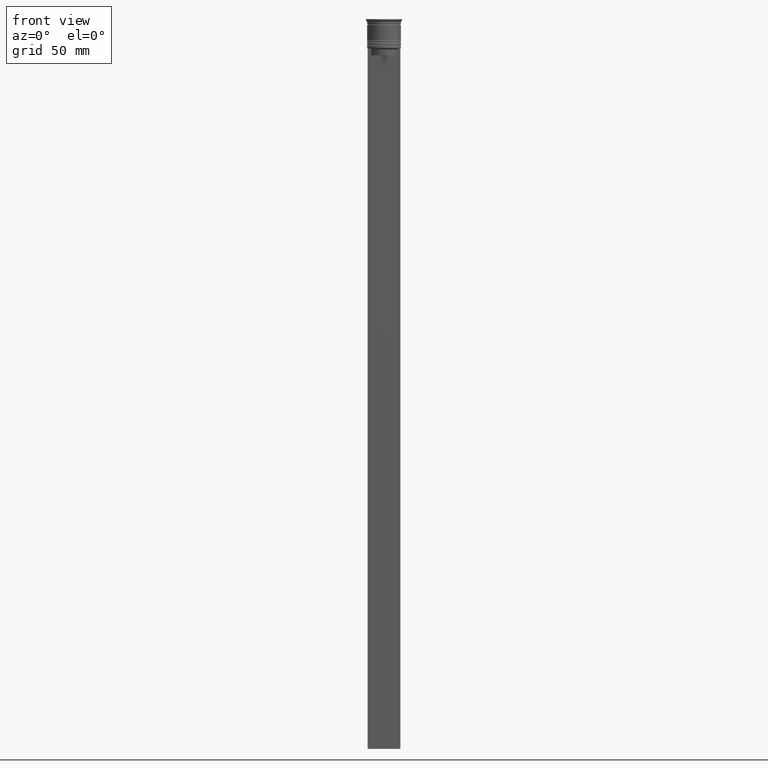
[diagram: clean part render]
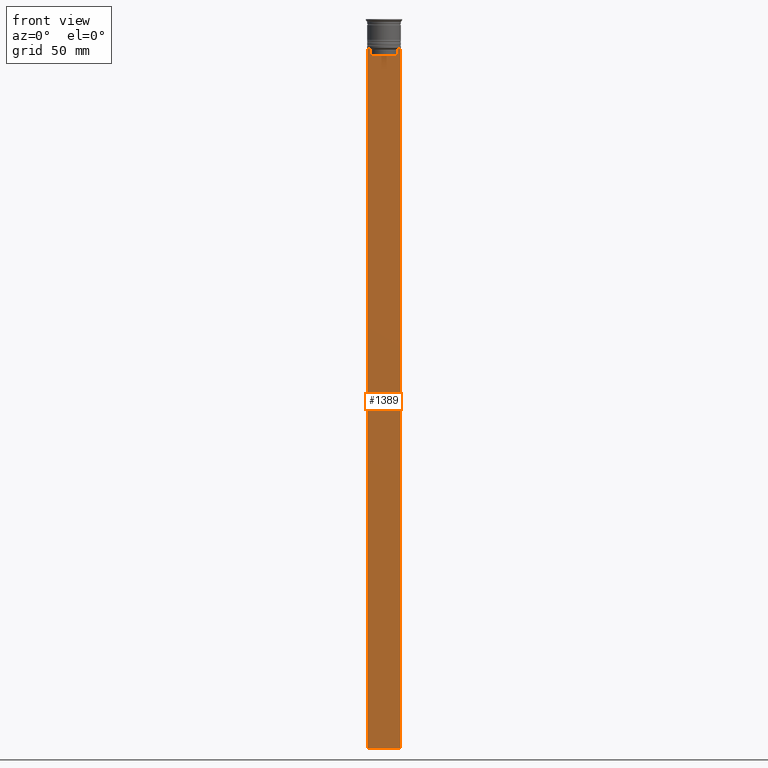
[diagram: same view with one face highlighted and labeled with its STEP entity id]
A machine part, front view. The second image highlights one B-rep face of the part: STEP entity #1389.
In plain terms, the highlighted planar face has unit normal (0, -1, -0).
Its self-contained STEP definition (entity closure, byte-faithful):
#25 = CARTESIAN_POINT ( 'NONE',  ( 7.000000000000012434, -0.5000000000000022204, 1.535668847618198329 ) ) ;
#29 = EDGE_CURVE ( 'NONE', #1887, #1810, #2250, .T. ) ;
#39 = AXIS2_PLACEMENT_3D ( 'NONE', #994, #1574, #1755 ) ;
#138 = PLANE ( 'NONE',  #39 ) ;
#171 = CARTESIAN_POINT ( 'NONE',  ( -6.999999999999987566, -0.5000000000000022204, 1.535668847618198329 ) ) ;
#206 = EDGE_CURVE ( 'NONE', #1887, #1143, #1630, .T. ) ;
#234 = CARTESIAN_POINT ( 'NONE',  ( 7.000000000000012434, -0.5000000000000022204, -12.50000000000000000 ) ) ;
#266 = VECTOR ( 'NONE', #540, 1000.000000000000000 ) ;
#338 = CARTESIAN_POINT ( 'NONE',  ( -6.999999999999987566, -0.5000000000000022204, -312.5000000000000000 ) ) ;
#404 = CARTESIAN_POINT ( 'NONE',  ( 6.129641098791995368, -0.5000000000000022204, -12.50000000000000000 ) ) ;
#498 = CARTESIAN_POINT ( 'NONE',  ( 5.795128760752288777, -0.5000000000000022204, -12.83336023406855375 ) ) ;
#514 = LINE ( 'NONE', #1078, #1847 ) ;
#532 = CARTESIAN_POINT ( 'NONE',  ( -6.999999999999987566, -0.5000000000000022204, -12.50000000000000000 ) ) ;
#535 = CARTESIAN_POINT ( 'NONE',  ( -5.627832620112292794, -0.5000000000000022204, -13.00000000000000000 ) ) ;
#536 = EDGE_CURVE ( 'NONE', #1488, #1143, #514, .T. ) ;
#540 = DIRECTION ( 'NONE',  ( 0.000000000000000000, 0.000000000000000000, -1.000000000000000000 ) ) ;
#559 = VECTOR ( 'NONE', #1809, 1000.000000000000000 ) ;
#664 = EDGE_CURVE ( 'NONE', #1923, #2178, #669, .T. ) ;
#669 = LINE ( 'NONE', #2139, #559 ) ;
#690 = DIRECTION ( 'NONE',  ( 0.000000000000000000, 0.000000000000000000, -1.000000000000000000 ) ) ;
#707 = ORIENTED_EDGE ( 'NONE', *, *, #206, .T. ) ;
#708 = CARTESIAN_POINT ( 'NONE',  ( -6.129641098791995368, -0.5000000000000022204, -12.50000000000000000 ) ) ;
#730 = VERTEX_POINT ( 'NONE', #2034 ) ;
#736 = VERTEX_POINT ( 'NONE', #234 ) ;
#771 = ORIENTED_EDGE ( 'NONE', *, *, #1349, .F. ) ;
#831 = ORIENTED_EDGE ( 'NONE', *, *, #1023, .F. ) ;
#841 = CARTESIAN_POINT ( 'NONE',  ( 5.627832620112292794, -0.5000000000000022204, -13.00000000000000000 ) ) ;
#861 = VECTOR ( 'NONE', #690, 1000.000000000000000 ) ;
#902 = VECTOR ( 'NONE', #1030, 1000.000000000000000 ) ;
#981 = CARTESIAN_POINT ( 'NONE',  ( -6.129641098791995368, -0.5000000000000022204, -12.50000000000000000 ) ) ;
#991 = CARTESIAN_POINT ( 'NONE',  ( 5.627832620112292794, -0.5000000000000022204, -13.00000000000000000 ) ) ;
#994 = CARTESIAN_POINT ( 'NONE',  ( 7.000000000000012434, -0.5000000000000022204, 1.535668847618198329 ) ) ;
#999 = LINE ( 'NONE', #25, #902 ) ;
#1003 = LINE ( 'NONE', #1025, #1971 ) ;
#1023 = EDGE_CURVE ( 'NONE', #736, #1488, #999, .T. ) ;
#1025 = CARTESIAN_POINT ( 'NONE',  ( 7.000000000000012434, -0.5000000000000022204, -12.50000000000000000 ) ) ;
#1026 = B_SPLINE_CURVE_WITH_KNOTS ( 'NONE', 3,
 ( #708, #2169, #2158, #535 ),
 .UNSPECIFIED., .F., .F.,
 ( 4, 4 ),
 ( 0.01045365750109871796, 0.01116204421161398619 ),
 .UNSPECIFIED. ) ;
#1030 = DIRECTION ( 'NONE',  ( 0.000000000000000000, 0.000000000000000000, -1.000000000000000000 ) ) ;
#1078 = CARTESIAN_POINT ( 'NONE',  ( 7.000000000000012434, -0.5000000000000022204, -312.5000000000000000 ) ) ;
#1143 = VERTEX_POINT ( 'NONE', #338 ) ;
#1171 = ORIENTED_EDGE ( 'NONE', *, *, #664, .F. ) ;
#1230 = ORIENTED_EDGE ( 'NONE', *, *, #2312, .F. ) ;
#1236 = EDGE_LOOP ( 'NONE', ( #2152, #1978, #707, #1705, #831, #2015, #771, #1171, #1735, #1230 ) ) ;
#1255 = CARTESIAN_POINT ( 'NONE',  ( -5.627832620112292794, -0.5000000000000022204, -13.00000000000000000 ) ) ;
#1265 = LINE ( 'NONE', #1952, #2160 ) ;
#1279 = VECTOR ( 'NONE', #1393, 1000.000000000000000 ) ;
#1349 = EDGE_CURVE ( 'NONE', #2178, #1633, #1908, .T. ) ;
#1378 = FACE_OUTER_BOUND ( 'NONE', #1236, .T. ) ;
#1389 = ADVANCED_FACE ( 'NONE', ( #1378 ), #138, .T. ) ;
#1393 = DIRECTION ( 'NONE',  ( 1.000000000000000000, 0.000000000000000000, 0.000000000000000000 ) ) ;
#1412 = CARTESIAN_POINT ( 'NONE',  ( 5.627832620112292794, -0.5000000000000022204, -15.50000000000000000 ) ) ;
#1488 = VERTEX_POINT ( 'NONE', #2321 ) ;
#1550 = EDGE_CURVE ( 'NONE', #1810, #1551, #1026, .T. ) ;
#1551 = VERTEX_POINT ( 'NONE', #1255 ) ;
#1564 = CARTESIAN_POINT ( 'NONE',  ( 5.962396079681182570, -0.5000000000000022204, -12.66669137279835766 ) ) ;
#1569 = CARTESIAN_POINT ( 'NONE',  ( 7.000000000000012434, -0.5000000000000022204, -12.50000000000000000 ) ) ;
#1574 = DIRECTION ( 'NONE',  ( 0.000000000000000000, -1.000000000000000000, -0.000000000000000000 ) ) ;
#1583 = DIRECTION ( 'NONE',  ( -1.000000000000000000, 0.000000000000000000, 0.000000000000000000 ) ) ;
#1630 = LINE ( 'NONE', #171, #861 ) ;
#1633 = VERTEX_POINT ( 'NONE', #404 ) ;
#1705 = ORIENTED_EDGE ( 'NONE', *, *, #536, .F. ) ;
#1735 = ORIENTED_EDGE ( 'NONE', *, *, #1943, .F. ) ;
#1752 = DIRECTION ( 'NONE',  ( 1.000000000000000000, 0.000000000000000000, 0.000000000000000000 ) ) ;
#1755 = DIRECTION ( 'NONE',  ( 0.000000000000000000, 0.000000000000000000, -1.000000000000000000 ) ) ;
#1809 = DIRECTION ( 'NONE',  ( -0.000000000000000000, -0.000000000000000000, 1.000000000000000000 ) ) ;
#1810 = VERTEX_POINT ( 'NONE', #981 ) ;
#1847 = VECTOR ( 'NONE', #1583, 1000.000000000000000 ) ;
#1857 = EDGE_CURVE ( 'NONE', #1633, #736, #1003, .T. ) ;
#1887 = VERTEX_POINT ( 'NONE', #532 ) ;
#1908 = B_SPLINE_CURVE_WITH_KNOTS ( 'NONE', 3,
 ( #841, #498, #1564, #2123 ),
 .UNSPECIFIED., .F., .F.,
 ( 4, 4 ),
 ( 0.02651134470867370918, 0.02721991123504334531 ),
 .UNSPECIFIED. ) ;
#1923 = VERTEX_POINT ( 'NONE', #1412 ) ;
#1938 = CARTESIAN_POINT ( 'NONE',  ( -5.627832620112292794, -0.5000000000000022204, 0.000000000000000000 ) ) ;
#1943 = EDGE_CURVE ( 'NONE', #730, #1923, #1265, .T. ) ;
#1952 = CARTESIAN_POINT ( 'NONE',  ( 0.000000000000000000, -0.5000000000000022204, -15.50000000000000000 ) ) ;
#1971 = VECTOR ( 'NONE', #1752, 1000.000000000000000 ) ;
#1978 = ORIENTED_EDGE ( 'NONE', *, *, #29, .F. ) ;
#1979 = DIRECTION ( 'NONE',  ( 1.000000000000000000, 0.000000000000000000, 0.000000000000000000 ) ) ;
#2015 = ORIENTED_EDGE ( 'NONE', *, *, #1857, .F. ) ;
#2034 = CARTESIAN_POINT ( 'NONE',  ( -5.627832620112292794, -0.5000000000000022204, -15.50000000000000000 ) ) ;
#2123 = CARTESIAN_POINT ( 'NONE',  ( 6.129641098791995368, -0.5000000000000022204, -12.50000000000000000 ) ) ;
#2137 = LINE ( 'NONE', #1938, #266 ) ;
#2139 = CARTESIAN_POINT ( 'NONE',  ( 5.627832620112292794, -0.5000000000000022204, 0.000000000000000000 ) ) ;
#2152 = ORIENTED_EDGE ( 'NONE', *, *, #1550, .F. ) ;
#2158 = CARTESIAN_POINT ( 'NONE',  ( -5.795128834036803234, -0.5000000000000022204, -12.83336016107156574 ) ) ;
#2160 = VECTOR ( 'NONE', #1979, 1000.000000000000000 ) ;
#2169 = CARTESIAN_POINT ( 'NONE',  ( -5.962396146966409738, -0.5000000000000022204, -12.66669130573587054 ) ) ;
#2178 = VERTEX_POINT ( 'NONE', #991 ) ;
#2250 = LINE ( 'NONE', #1569, #1279 ) ;
#2312 = EDGE_CURVE ( 'NONE', #1551, #730, #2137, .T. ) ;
#2321 = CARTESIAN_POINT ( 'NONE',  ( 7.000000000000012434, -0.5000000000000022204, -312.5000000000000000 ) ) ;